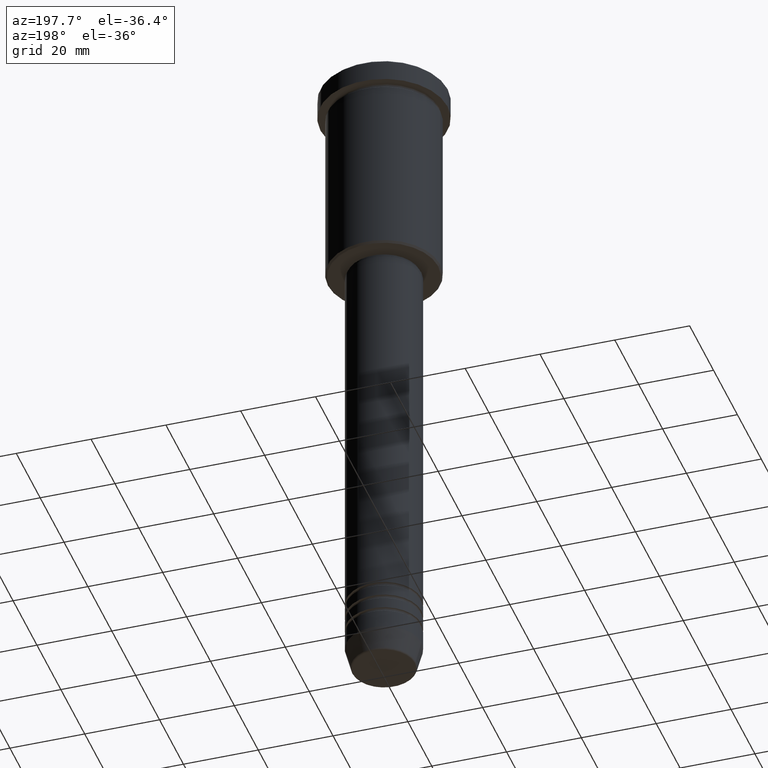
[diagram: clean part render]
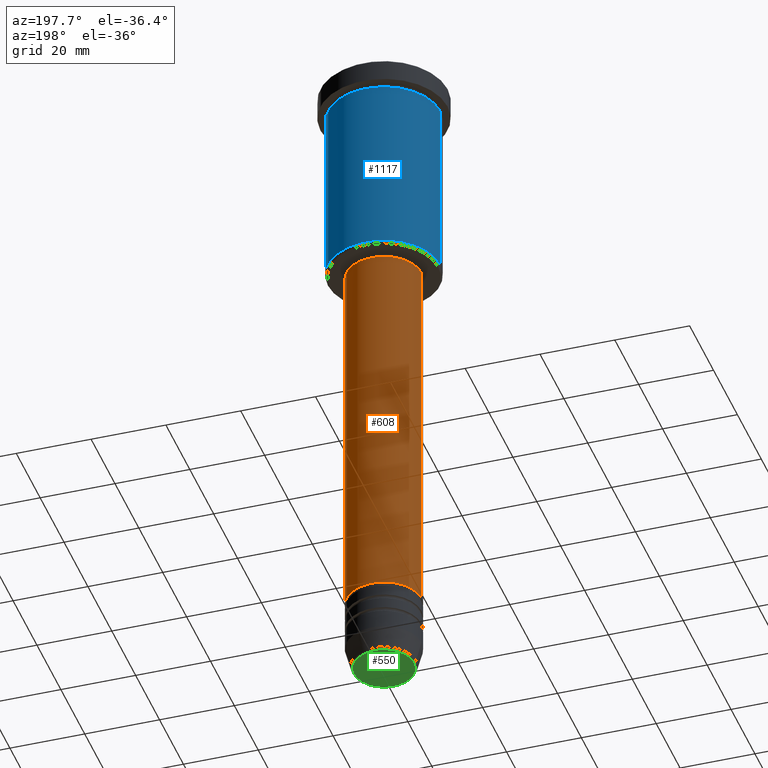
[diagram: same view with three faces highlighted in distinct colors, each labeled with its STEP entity id]
A machine part, auxiliary view with three faces highlighted in distinct colors.
Their STEP definitions:

[orange] entity #608 — the highlighted cylindrical surface (partial cylindrical patch) has radius 10 mm, axis along (-0, -0, 1).
#8 = DIRECTION ( 'NONE',  ( 1.000000000000000000, 0.000000000000000000, 0.000000000000000000 ) ) ;
#51 = AXIS2_PLACEMENT_3D ( 'NONE', #985, #159, #253 ) ;
#111 = AXIS2_PLACEMENT_3D ( 'NONE', #740, #744, #8 ) ;
#117 = DIRECTION ( 'NONE',  ( -0.000000000000000000, -0.000000000000000000, 1.000000000000000000 ) ) ;
#156 = EDGE_CURVE ( 'NONE', #684, #588, #1030, .T. ) ;
#159 = DIRECTION ( 'NONE',  ( -0.000000000000000000, -0.000000000000000000, 1.000000000000000000 ) ) ;
#169 = VECTOR ( 'NONE', #1176, 1000.000000000000000 ) ;
#253 = DIRECTION ( 'NONE',  ( 1.000000000000000000, 0.000000000000000000, 0.000000000000000000 ) ) ;
#271 = DIRECTION ( 'NONE',  ( -0.000000000000000000, -0.000000000000000000, 1.000000000000000000 ) ) ;
#282 = DIRECTION ( 'NONE',  ( 1.000000000000000000, 0.000000000000000000, 0.000000000000000000 ) ) ;
#320 = VERTEX_POINT ( 'NONE', #688 ) ;
#384 = EDGE_CURVE ( 'NONE', #685, #320, #918, .T. ) ;
#389 = AXIS2_PLACEMENT_3D ( 'NONE', #478, #271, #282 ) ;
#424 = ORIENTED_EDGE ( 'NONE', *, *, #481, .F. ) ;
#432 = CARTESIAN_POINT ( 'NONE',  ( 10.00000000000000000, 0.000000000000000000, 0.000000000000000000 ) ) ;
#444 = CIRCLE ( 'NONE', #389, 10.00000000000000178 ) ;
#478 = CARTESIAN_POINT ( 'NONE',  ( 0.000000000000000000, 0.000000000000000000, -160.0000000000000000 ) ) ;
#481 = EDGE_CURVE ( 'NONE', #320, #588, #569, .T. ) ;
#494 = CARTESIAN_POINT ( 'NONE',  ( -10.00000000000000178, 1.224646799147353454E-15, -160.0000000000000000 ) ) ;
#496 = ORIENTED_EDGE ( 'NONE', *, *, #655, .T. ) ;
#498 = ORIENTED_EDGE ( 'NONE', *, *, #156, .T. ) ;
#547 = VECTOR ( 'NONE', #117, 1000.000000000000000 ) ;
#552 = FACE_OUTER_BOUND ( 'NONE', #872, .T. ) ;
#569 = CIRCLE ( 'NONE', #51, 9.999999999999998224 ) ;
#588 = VERTEX_POINT ( 'NONE', #937 ) ;
#608 = ADVANCED_FACE ( 'NONE', ( #552 ), #658, .T. ) ;
#655 = EDGE_CURVE ( 'NONE', #685, #684, #444, .T. ) ;
#658 = CYLINDRICAL_SURFACE ( 'NONE', #111, 10.00000000000000000 ) ;
#684 = VERTEX_POINT ( 'NONE', #494 ) ;
#685 = VERTEX_POINT ( 'NONE', #1046 ) ;
#688 = CARTESIAN_POINT ( 'NONE',  ( 9.999999999999998224, 0.000000000000000000, -57.00000000000001421 ) ) ;
#740 = CARTESIAN_POINT ( 'NONE',  ( 0.000000000000000000, 0.000000000000000000, 0.000000000000000000 ) ) ;
#744 = DIRECTION ( 'NONE',  ( -0.000000000000000000, -0.000000000000000000, 1.000000000000000000 ) ) ;
#804 = ORIENTED_EDGE ( 'NONE', *, *, #384, .F. ) ;
#872 = EDGE_LOOP ( 'NONE', ( #496, #498, #424, #804 ) ) ;
#918 = LINE ( 'NONE', #432, #169 ) ;
#937 = CARTESIAN_POINT ( 'NONE',  ( -9.999999999999998224, 1.224646799147353256E-15, -57.00000000000001421 ) ) ;
#985 = CARTESIAN_POINT ( 'NONE',  ( 0.000000000000000000, 0.000000000000000000, -57.00000000000001421 ) ) ;
#1019 = CARTESIAN_POINT ( 'NONE',  ( -10.00000000000000000, 1.224646799147353256E-15, 0.000000000000000000 ) ) ;
#1030 = LINE ( 'NONE', #1019, #547 ) ;
#1046 = CARTESIAN_POINT ( 'NONE',  ( 10.00000000000000178, 0.000000000000000000, -160.0000000000000000 ) ) ;
#1176 = DIRECTION ( 'NONE',  ( -0.000000000000000000, -0.000000000000000000, 1.000000000000000000 ) ) ;

[blue] entity #1117 — the highlighted cylindrical surface (partial cylindrical patch) has radius 15 mm, axis along (-0, -0, 1).
#30 = CYLINDRICAL_SURFACE ( 'NONE', #391, 15.00000000000000000 ) ;
#38 = EDGE_CURVE ( 'NONE', #255, #503, #355, .T. ) ;
#39 = DIRECTION ( 'NONE',  ( -0.000000000000000000, -0.000000000000000000, 1.000000000000000000 ) ) ;
#63 = DIRECTION ( 'NONE',  ( -0.000000000000000000, -0.000000000000000000, 1.000000000000000000 ) ) ;
#125 = VECTOR ( 'NONE', #63, 1000.000000000000000 ) ;
#142 = AXIS2_PLACEMENT_3D ( 'NONE', #869, #514, #235 ) ;
#214 = DIRECTION ( 'NONE',  ( -0.000000000000000000, -0.000000000000000000, 1.000000000000000000 ) ) ;
#219 = EDGE_CURVE ( 'NONE', #923, #435, #907, .T. ) ;
#234 = EDGE_CURVE ( 'NONE', #923, #255, #331, .T. ) ;
#235 = DIRECTION ( 'NONE',  ( -1.000000000000000000, 0.000000000000000000, 0.000000000000000000 ) ) ;
#255 = VERTEX_POINT ( 'NONE', #781 ) ;
#267 = DIRECTION ( 'NONE',  ( 1.000000000000000000, 0.000000000000000000, 0.000000000000000000 ) ) ;
#331 = LINE ( 'NONE', #599, #656 ) ;
#352 = LINE ( 'NONE', #800, #125 ) ;
#355 = CIRCLE ( 'NONE', #1045, 15.00000000000000000 ) ;
#391 = AXIS2_PLACEMENT_3D ( 'NONE', #964, #214, #482 ) ;
#435 = VERTEX_POINT ( 'NONE', #449 ) ;
#438 = EDGE_LOOP ( 'NONE', ( #518, #1010, #889, #1069 ) ) ;
#449 = CARTESIAN_POINT ( 'NONE',  ( -15.00000000000000000, 1.836970198721029589E-15, -55.50000000000000000 ) ) ;
#482 = DIRECTION ( 'NONE',  ( 1.000000000000000000, 0.000000000000000000, 0.000000000000000000 ) ) ;
#503 = VERTEX_POINT ( 'NONE', #720 ) ;
#514 = DIRECTION ( 'NONE',  ( -0.000000000000000000, -0.000000000000000000, 1.000000000000000000 ) ) ;
#518 = ORIENTED_EDGE ( 'NONE', *, *, #219, .T. ) ;
#599 = CARTESIAN_POINT ( 'NONE',  ( 15.00000000000000000, 0.000000000000000000, 0.000000000000000000 ) ) ;
#656 = VECTOR ( 'NONE', #39, 1000.000000000000000 ) ;
#699 = CARTESIAN_POINT ( 'NONE',  ( 15.00000000000000000, 0.000000000000000000, -55.50000000000000000 ) ) ;
#720 = CARTESIAN_POINT ( 'NONE',  ( -15.00000000000000000, 1.836970198721029589E-15, -6.999999999999995559 ) ) ;
#781 = CARTESIAN_POINT ( 'NONE',  ( 15.00000000000000000, 0.000000000000000000, -6.999999999999995559 ) ) ;
#800 = CARTESIAN_POINT ( 'NONE',  ( -15.00000000000000000, 1.836970198721029589E-15, 0.000000000000000000 ) ) ;
#846 = EDGE_CURVE ( 'NONE', #435, #503, #352, .T. ) ;
#869 = CARTESIAN_POINT ( 'NONE',  ( 0.000000000000000000, 0.000000000000000000, -55.50000000000000000 ) ) ;
#889 = ORIENTED_EDGE ( 'NONE', *, *, #38, .F. ) ;
#907 = CIRCLE ( 'NONE', #142, 15.00000000000000000 ) ;
#923 = VERTEX_POINT ( 'NONE', #699 ) ;
#964 = CARTESIAN_POINT ( 'NONE',  ( 0.000000000000000000, 0.000000000000000000, 0.000000000000000000 ) ) ;
#1010 = ORIENTED_EDGE ( 'NONE', *, *, #846, .T. ) ;
#1042 = FACE_OUTER_BOUND ( 'NONE', #438, .T. ) ;
#1045 = AXIS2_PLACEMENT_3D ( 'NONE', #1091, #1178, #267 ) ;
#1069 = ORIENTED_EDGE ( 'NONE', *, *, #234, .F. ) ;
#1091 = CARTESIAN_POINT ( 'NONE',  ( 0.000000000000000000, 0.000000000000000000, -6.999999999999995559 ) ) ;
#1117 = ADVANCED_FACE ( 'NONE', ( #1042 ), #30, .T. ) ;
#1178 = DIRECTION ( 'NONE',  ( -0.000000000000000000, -0.000000000000000000, 1.000000000000000000 ) ) ;

[green] entity #550 — the highlighted planar face has unit normal (0, -0, 1).
#20 = CARTESIAN_POINT ( 'NONE',  ( 0.000000000000000000, 0.000000000000000000, -180.0000000000000000 ) ) ;
#97 = DIRECTION ( 'NONE',  ( 0.000000000000000000, -0.000000000000000000, 1.000000000000000000 ) ) ;
#119 = DIRECTION ( 'NONE',  ( 1.000000000000000000, 0.000000000000000000, 0.000000000000000000 ) ) ;
#191 = VERTEX_POINT ( 'NONE', #839 ) ;
#309 = EDGE_CURVE ( 'NONE', #191, #1141, #429, .T. ) ;
#360 = EDGE_LOOP ( 'NONE', ( #632, #488 ) ) ;
#429 = CIRCLE ( 'NONE', #776, 8.008641351423790411 ) ;
#456 = FACE_OUTER_BOUND ( 'NONE', #360, .T. ) ;
#488 = ORIENTED_EDGE ( 'NONE', *, *, #572, .T. ) ;
#492 = CARTESIAN_POINT ( 'NONE',  ( -8.008641351423790411, 1.010348648938494750E-15, -180.0000000000000000 ) ) ;
#550 = ADVANCED_FACE ( 'NONE', ( #456 ), #1018, .F. ) ;
#557 = DIRECTION ( 'NONE',  ( 0.000000000000000000, 0.000000000000000000, -1.000000000000000000 ) ) ;
#572 = EDGE_CURVE ( 'NONE', #1141, #191, #749, .T. ) ;
#576 = CARTESIAN_POINT ( 'NONE',  ( 0.000000000000000000, 0.000000000000000000, -180.0000000000000000 ) ) ;
#601 = AXIS2_PLACEMENT_3D ( 'NONE', #20, #97, #119 ) ;
#632 = ORIENTED_EDGE ( 'NONE', *, *, #309, .T. ) ;
#682 = DIRECTION ( 'NONE',  ( 0.000000000000000000, 0.000000000000000000, -1.000000000000000000 ) ) ;
#728 = DIRECTION ( 'NONE',  ( 1.000000000000000000, 0.000000000000000000, 0.000000000000000000 ) ) ;
#749 = CIRCLE ( 'NONE', #793, 8.008641351423790411 ) ;
#776 = AXIS2_PLACEMENT_3D ( 'NONE', #576, #682, #952 ) ;
#793 = AXIS2_PLACEMENT_3D ( 'NONE', #832, #557, #728 ) ;
#832 = CARTESIAN_POINT ( 'NONE',  ( 0.000000000000000000, 0.000000000000000000, -180.0000000000000000 ) ) ;
#839 = CARTESIAN_POINT ( 'NONE',  ( 8.008641351423790411, 0.000000000000000000, -180.0000000000000000 ) ) ;
#952 = DIRECTION ( 'NONE',  ( 1.000000000000000000, 0.000000000000000000, 0.000000000000000000 ) ) ;
#1018 = PLANE ( 'NONE',  #601 ) ;
#1141 = VERTEX_POINT ( 'NONE', #492 ) ;